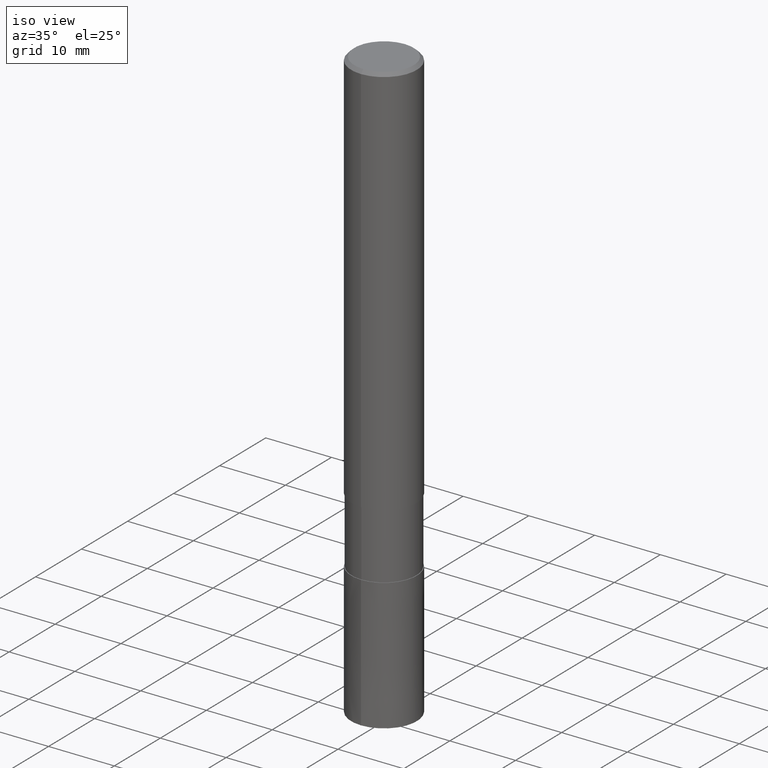
[diagram: clean part render]
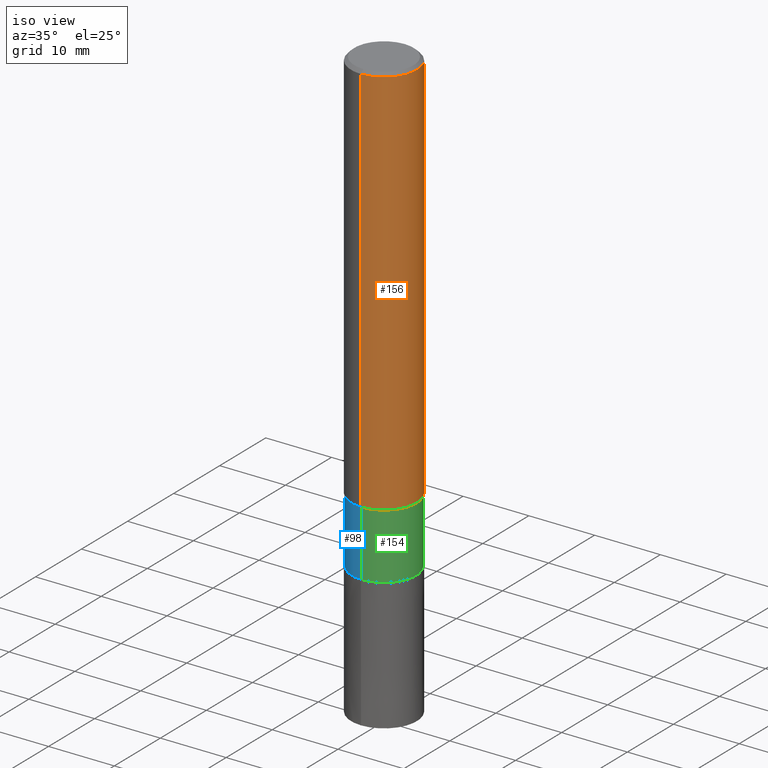
[diagram: same view with three faces highlighted in distinct colors, each labeled with its STEP entity id]
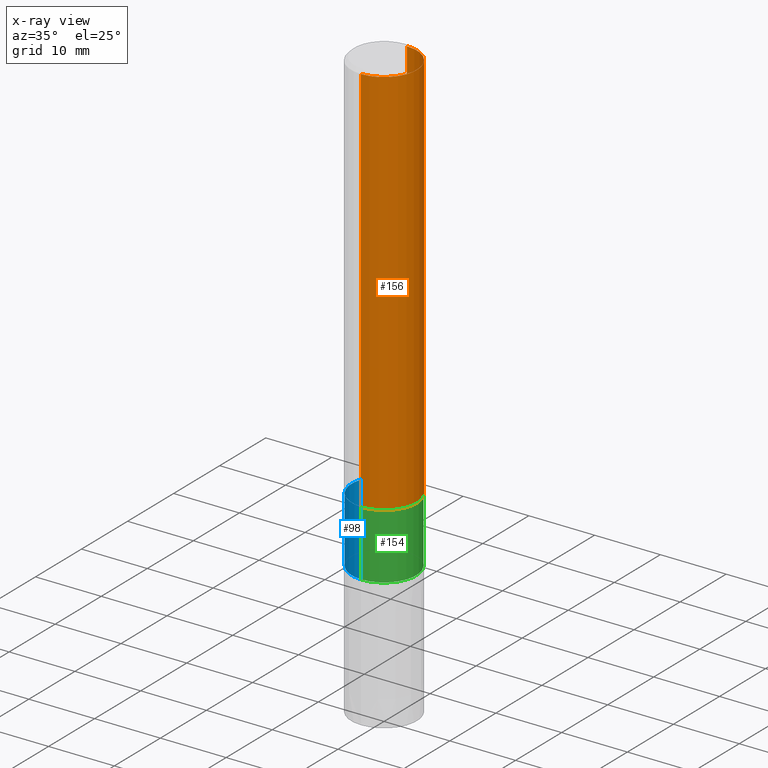
[diagram: x-ray of the same camera — body ghosted, the three highlighted faces saturated]
A machine part, iso view with three faces highlighted in distinct colors.
The next image is the same camera in x-ray (body ghosted, the three faces saturated) — at least one of them is partly hidden behind the body in this view.
Their STEP definitions:

[orange] entity #156 — the highlighted cylindrical surface (partial cylindrical patch) has radius 5 mm, axis along (-0, -0, 1).
#92=VERTEX_POINT('',#213);
#100=VERTEX_POINT('',#222);
#106=VERTEX_POINT('',#228);
#130=VERTEX_POINT('',#254);
#156=ADVANCED_FACE('',(#287),#288,.T.);
#160=EDGE_CURVE('',#130,#92,#292,.T.);
#162=EDGE_CURVE('',#106,#100,#294,.T.);
#168=EDGE_CURVE('',#100,#130,#302,.T.);
#180=EDGE_CURVE('',#106,#92,#315,.T.);
#213=CARTESIAN_POINT('',(6.12303176911189E-016,-5.0,-0.5));
#222=CARTESIAN_POINT('',(0.0,5.0,-60.0));
#228=CARTESIAN_POINT('',(0.0,5.0,-0.5));
#254=CARTESIAN_POINT('',(6.12303176911189E-016,-5.0,-60.0));
#287=FACE_OUTER_BOUND('',#430,.T.);
#288=CYLINDRICAL_SURFACE('',#431,5.0);
#292=LINE('',#438,#439);
#294=LINE('',#442,#443);
#302=CIRCLE('',#452,5.0);
#315=CIRCLE('',#467,5.0);
#430=EDGE_LOOP('',(#575,#576,#577,#578));
#431=AXIS2_PLACEMENT_3D('',#579,#580,#581);
#438=CARTESIAN_POINT('',(6.12303176911189E-016,-5.0,-30.25));
#439=VECTOR('',#583,1.0);
#442=CARTESIAN_POINT('',(-6.12303176911189E-016,5.0,-30.25));
#443=VECTOR('',#584,1.0);
#452=AXIS2_PLACEMENT_3D('',#599,#600,#601);
#467=AXIS2_PLACEMENT_3D('',#617,#618,#619);
#575=ORIENTED_EDGE('',*,*,#162,.F.);
#576=ORIENTED_EDGE('',*,*,#180,.T.);
#577=ORIENTED_EDGE('',*,*,#160,.F.);
#578=ORIENTED_EDGE('',*,*,#168,.F.);
#579=CARTESIAN_POINT('',(0.0,0.0,-30.25));
#580=DIRECTION('',(-0.0,-0.0,1.0));
#581=DIRECTION('',(0.0,1.0,0.0));
#583=DIRECTION('',(-0.0,-0.0,1.0));
#584=DIRECTION('',(0.0,0.0,-1.0));
#599=CARTESIAN_POINT('',(0.0,0.0,-60.0));
#600=DIRECTION('',(0.0,0.0,-1.0));
#601=DIRECTION('',(0.0,1.0,0.0));
#617=CARTESIAN_POINT('',(0.0,0.0,-0.5));
#618=DIRECTION('',(0.0,0.0,-1.0));
#619=DIRECTION('',(0.0,1.0,0.0));

[blue] entity #98 — the highlighted cylindrical surface (partial cylindrical patch) has radius 4.91 mm, axis along (-0, -0, 1).
#98=ADVANCED_FACE('',(#219),#220,.T.);
#108=VERTEX_POINT('',#230);
#110=VERTEX_POINT('',#232);
#112=VERTEX_POINT('',#234);
#134=EDGE_CURVE('',#112,#148,#259,.T.);
#148=VERTEX_POINT('',#278);
#158=EDGE_CURVE('',#108,#110,#290,.T.);
#170=EDGE_CURVE('',#112,#110,#304,.T.);
#184=EDGE_CURVE('',#148,#108,#319,.T.);
#219=FACE_OUTER_BOUND('',#351,.T.);
#220=CYLINDRICAL_SURFACE('',#352,4.90995);
#230=CARTESIAN_POINT('',(0.0,4.90995,-60.0));
#232=CARTESIAN_POINT('',(0.0,4.90995,-70.0));
#234=CARTESIAN_POINT('',(6.01275596695018E-016,-4.90995,-70.0));
#259=LINE('',#397,#398);
#278=CARTESIAN_POINT('',(6.01275596695018E-016,-4.90995,-60.0));
#290=LINE('',#434,#435);
#304=CIRCLE('',#455,4.90995);
#319=CIRCLE('',#474,4.90995);
#351=EDGE_LOOP('',(#487,#488,#489,#490));
#352=AXIS2_PLACEMENT_3D('',#491,#492,#493);
#397=CARTESIAN_POINT('',(6.01275596695018E-016,-4.90995,-65.0));
#398=VECTOR('',#531,1.0);
#434=CARTESIAN_POINT('',(-6.01275596695018E-016,4.90995,-65.0));
#435=VECTOR('',#582,1.0);
#455=AXIS2_PLACEMENT_3D('',#602,#603,#604);
#474=AXIS2_PLACEMENT_3D('',#621,#622,#623);
#487=ORIENTED_EDGE('',*,*,#158,.T.);
#488=ORIENTED_EDGE('',*,*,#170,.F.);
#489=ORIENTED_EDGE('',*,*,#134,.T.);
#490=ORIENTED_EDGE('',*,*,#184,.T.);
#491=CARTESIAN_POINT('',(0.0,0.0,-65.0));
#492=DIRECTION('',(-0.0,-0.0,1.0));
#493=DIRECTION('',(0.0,1.0,0.0));
#531=DIRECTION('',(-0.0,-0.0,1.0));
#582=DIRECTION('',(0.0,0.0,-1.0));
#602=CARTESIAN_POINT('',(0.0,0.0,-70.0));
#603=DIRECTION('',(0.0,0.0,-1.0));
#604=DIRECTION('',(0.0,1.0,0.0));
#621=CARTESIAN_POINT('',(0.0,0.0,-60.0));
#622=DIRECTION('',(0.0,0.0,-1.0));
#623=DIRECTION('',(0.0,1.0,0.0));

[green] entity #154 — the highlighted cylindrical surface (partial cylindrical patch) has radius 4.91 mm, axis along (-0, -0, 1).
#90=EDGE_CURVE('',#110,#112,#211,.T.);
#108=VERTEX_POINT('',#230);
#110=VERTEX_POINT('',#232);
#112=VERTEX_POINT('',#234);
#124=EDGE_CURVE('',#108,#148,#248,.T.);
#134=EDGE_CURVE('',#112,#148,#259,.T.);
#148=VERTEX_POINT('',#278);
#154=ADVANCED_FACE('',(#284),#285,.T.);
#158=EDGE_CURVE('',#108,#110,#290,.T.);
#211=CIRCLE('',#341,4.90995);
#230=CARTESIAN_POINT('',(0.0,4.90995,-60.0));
#232=CARTESIAN_POINT('',(0.0,4.90995,-70.0));
#234=CARTESIAN_POINT('',(6.01275596695018E-016,-4.90995,-70.0));
#248=CIRCLE('',#384,4.90995);
#259=LINE('',#397,#398);
#278=CARTESIAN_POINT('',(6.01275596695018E-016,-4.90995,-60.0));
#284=FACE_OUTER_BOUND('',#427,.T.);
#285=CYLINDRICAL_SURFACE('',#428,4.90995);
#290=LINE('',#434,#435);
#341=AXIS2_PLACEMENT_3D('',#482,#483,#484);
#384=AXIS2_PLACEMENT_3D('',#517,#518,#519);
#397=CARTESIAN_POINT('',(6.01275596695018E-016,-4.90995,-65.0));
#398=VECTOR('',#531,1.0);
#427=EDGE_LOOP('',(#567,#568,#569,#570));
#428=AXIS2_PLACEMENT_3D('',#571,#572,#573);
#434=CARTESIAN_POINT('',(-6.01275596695018E-016,4.90995,-65.0));
#435=VECTOR('',#582,1.0);
#482=CARTESIAN_POINT('',(0.0,0.0,-70.0));
#483=DIRECTION('',(0.0,0.0,-1.0));
#484=DIRECTION('',(0.0,1.0,0.0));
#517=CARTESIAN_POINT('',(0.0,0.0,-60.0));
#518=DIRECTION('',(0.0,0.0,-1.0));
#519=DIRECTION('',(0.0,1.0,0.0));
#531=DIRECTION('',(-0.0,-0.0,1.0));
#567=ORIENTED_EDGE('',*,*,#158,.F.);
#568=ORIENTED_EDGE('',*,*,#124,.T.);
#569=ORIENTED_EDGE('',*,*,#134,.F.);
#570=ORIENTED_EDGE('',*,*,#90,.F.);
#571=CARTESIAN_POINT('',(0.0,0.0,-65.0));
#572=DIRECTION('',(-0.0,-0.0,1.0));
#573=DIRECTION('',(0.0,1.0,0.0));
#582=DIRECTION('',(0.0,0.0,-1.0));